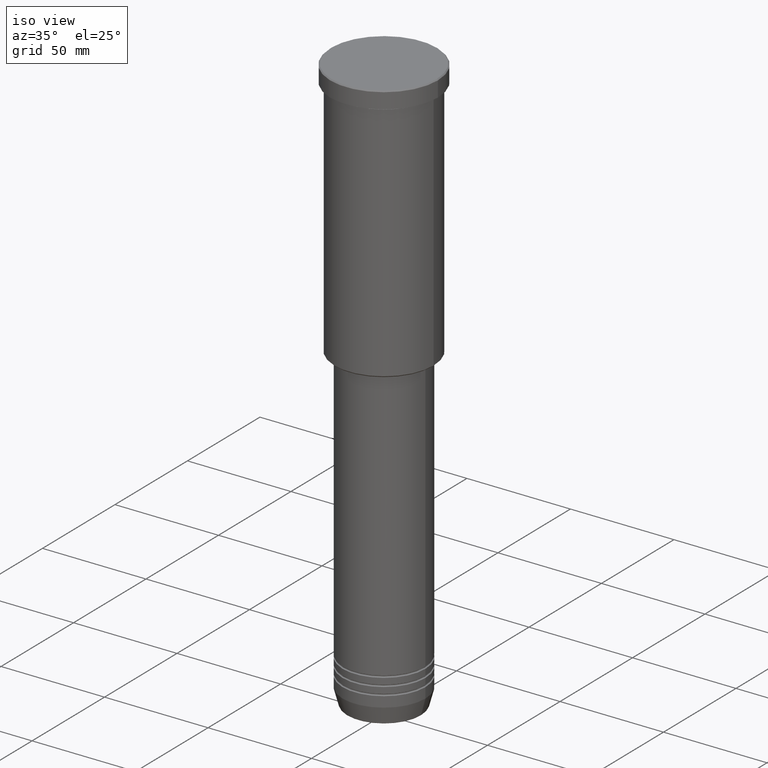
[diagram: clean part render]
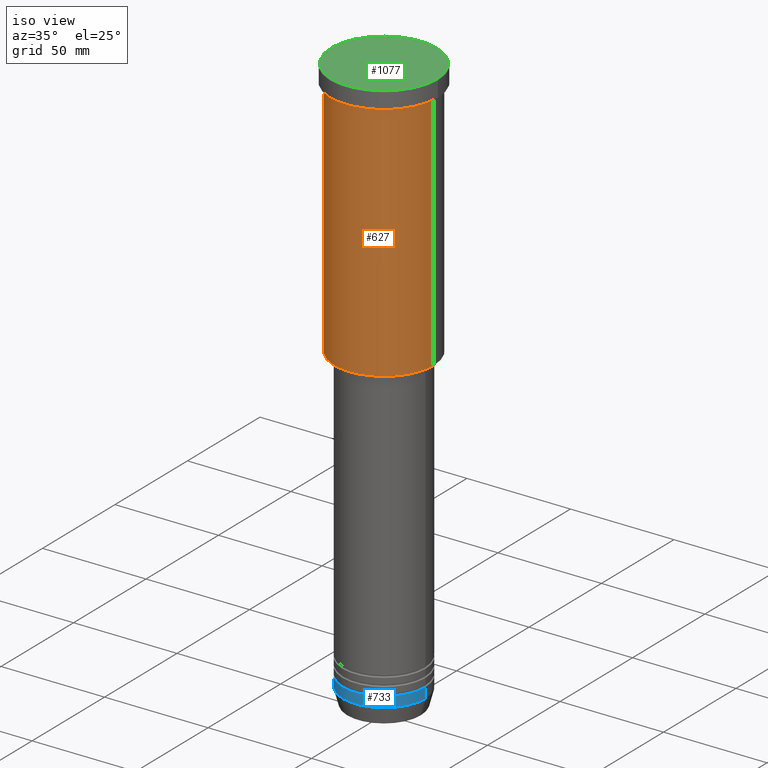
[diagram: same view with three faces highlighted in distinct colors, each labeled with its STEP entity id]
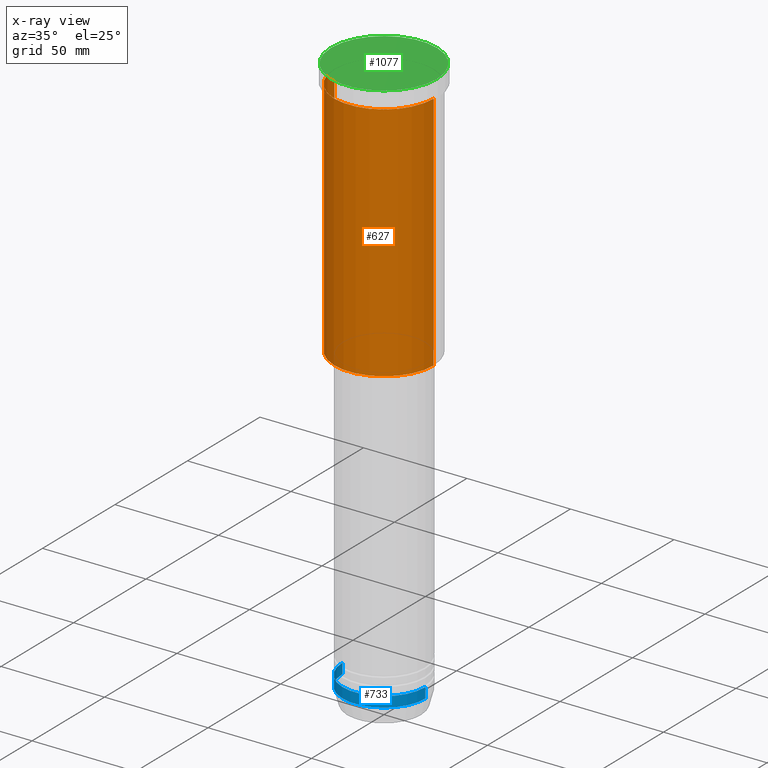
[diagram: x-ray of the same camera — body ghosted, the three highlighted faces saturated]
A machine part, iso view with three faces highlighted in distinct colors.
The next image is the same camera in x-ray (body ghosted, the three faces saturated) — at least one of them is partly hidden behind the body in this view.
Their STEP definitions:

[orange] entity #627 — the highlighted cylindrical surface (partial cylindrical patch) has radius 24 mm, axis along (-0, -0, 1).
#1 = VERTEX_POINT ( 'NONE', #669 ) ;
#7 = DIRECTION ( 'NONE',  ( -0.000000000000000000, -0.000000000000000000, 1.000000000000000000 ) ) ;
#10 = CIRCLE ( 'NONE', #1103, 24.00000000000000000 ) ;
#46 = EDGE_CURVE ( 'NONE', #872, #1034, #494, .T. ) ;
#104 = EDGE_CURVE ( 'NONE', #872, #880, #182, .T. ) ;
#139 = CARTESIAN_POINT ( 'NONE',  ( 24.00000000000000000, 0.000000000000000000, -125.4999999999999147 ) ) ;
#182 = CIRCLE ( 'NONE', #911, 24.00000000000000000 ) ;
#186 = ORIENTED_EDGE ( 'NONE', *, *, #46, .F. ) ;
#194 = CARTESIAN_POINT ( 'NONE',  ( 0.000000000000000000, 0.000000000000000000, 0.000000000000000000 ) ) ;
#221 = CARTESIAN_POINT ( 'NONE',  ( -24.00000000000000000, 2.939152317953647894E-15, -125.4999999999999147 ) ) ;
#229 = DIRECTION ( 'NONE',  ( -0.000000000000000000, -0.000000000000000000, 1.000000000000000000 ) ) ;
#271 = AXIS2_PLACEMENT_3D ( 'NONE', #194, #7, #461 ) ;
#305 = DIRECTION ( 'NONE',  ( -0.000000000000000000, -0.000000000000000000, 1.000000000000000000 ) ) ;
#324 = DIRECTION ( 'NONE',  ( -1.000000000000000000, 0.000000000000000000, 0.000000000000000000 ) ) ;
#348 = VECTOR ( 'NONE', #357, 1000.000000000000000 ) ;
#357 = DIRECTION ( 'NONE',  ( -0.000000000000000000, -0.000000000000000000, 1.000000000000000000 ) ) ;
#461 = DIRECTION ( 'NONE',  ( 1.000000000000000000, 0.000000000000000000, 0.000000000000000000 ) ) ;
#471 = VECTOR ( 'NONE', #305, 1000.000000000000000 ) ;
#494 = LINE ( 'NONE', #568, #471 ) ;
#504 = DIRECTION ( 'NONE',  ( -0.000000000000000000, -0.000000000000000000, 1.000000000000000000 ) ) ;
#568 = CARTESIAN_POINT ( 'NONE',  ( -24.00000000000000000, 2.939152317953647894E-15, 0.000000000000000000 ) ) ;
#577 = EDGE_CURVE ( 'NONE', #880, #1, #716, .T. ) ;
#627 = ADVANCED_FACE ( 'NONE', ( #1001 ), #1174, .T. ) ;
#669 = CARTESIAN_POINT ( 'NONE',  ( 24.00000000000000000, 0.000000000000000000, -8.999999999999994671 ) ) ;
#677 = CARTESIAN_POINT ( 'NONE',  ( 0.000000000000000000, 0.000000000000000000, -8.999999999999994671 ) ) ;
#695 = ORIENTED_EDGE ( 'NONE', *, *, #857, .F. ) ;
#716 = LINE ( 'NONE', #809, #348 ) ;
#754 = DIRECTION ( 'NONE',  ( 1.000000000000000000, 0.000000000000000000, 0.000000000000000000 ) ) ;
#759 = CARTESIAN_POINT ( 'NONE',  ( 0.000000000000000000, 0.000000000000000000, -125.4999999999999147 ) ) ;
#809 = CARTESIAN_POINT ( 'NONE',  ( 24.00000000000000000, 0.000000000000000000, 0.000000000000000000 ) ) ;
#810 = EDGE_LOOP ( 'NONE', ( #186, #916, #826, #695 ) ) ;
#826 = ORIENTED_EDGE ( 'NONE', *, *, #577, .T. ) ;
#857 = EDGE_CURVE ( 'NONE', #1034, #1, #10, .T. ) ;
#872 = VERTEX_POINT ( 'NONE', #221 ) ;
#880 = VERTEX_POINT ( 'NONE', #139 ) ;
#911 = AXIS2_PLACEMENT_3D ( 'NONE', #759, #504, #324 ) ;
#916 = ORIENTED_EDGE ( 'NONE', *, *, #104, .T. ) ;
#1001 = FACE_OUTER_BOUND ( 'NONE', #810, .T. ) ;
#1034 = VERTEX_POINT ( 'NONE', #1074 ) ;
#1074 = CARTESIAN_POINT ( 'NONE',  ( -24.00000000000000000, 2.939152317953647894E-15, -8.999999999999994671 ) ) ;
#1103 = AXIS2_PLACEMENT_3D ( 'NONE', #677, #229, #754 ) ;
#1174 = CYLINDRICAL_SURFACE ( 'NONE', #271, 24.00000000000000000 ) ;

[blue] entity #733 — the highlighted cylindrical surface (partial cylindrical patch) has radius 20 mm, axis along (-0, -0, 1).
#28 = CARTESIAN_POINT ( 'NONE',  ( 0.000000000000000000, 0.000000000000000000, 0.000000000000000000 ) ) ;
#70 = CARTESIAN_POINT ( 'NONE',  ( -20.00000000000000355, 2.449293598294706907E-15, -272.0000000000000000 ) ) ;
#146 = DIRECTION ( 'NONE',  ( 1.000000000000000000, 0.000000000000000000, 0.000000000000000000 ) ) ;
#178 = ORIENTED_EDGE ( 'NONE', *, *, #354, .T. ) ;
#198 = LINE ( 'NONE', #491, #895 ) ;
#212 = FACE_OUTER_BOUND ( 'NONE', #519, .T. ) ;
#233 = CIRCLE ( 'NONE', #496, 20.00000000000000355 ) ;
#267 = CARTESIAN_POINT ( 'NONE',  ( 20.00000000000000000, 0.000000000000000000, -267.0000000000000000 ) ) ;
#302 = LINE ( 'NONE', #827, #1128 ) ;
#354 = EDGE_CURVE ( 'NONE', #414, #571, #302, .T. ) ;
#362 = EDGE_CURVE ( 'NONE', #505, #1176, #198, .T. ) ;
#414 = VERTEX_POINT ( 'NONE', #744 ) ;
#437 = DIRECTION ( 'NONE',  ( -0.000000000000000000, -0.000000000000000000, 1.000000000000000000 ) ) ;
#454 = CARTESIAN_POINT ( 'NONE',  ( 0.000000000000000000, 0.000000000000000000, -272.0000000000000000 ) ) ;
#480 = DIRECTION ( 'NONE',  ( 1.000000000000000000, 0.000000000000000000, 0.000000000000000000 ) ) ;
#491 = CARTESIAN_POINT ( 'NONE',  ( -20.00000000000000355, 2.449293598294706907E-15, 0.000000000000000000 ) ) ;
#496 = AXIS2_PLACEMENT_3D ( 'NONE', #454, #745, #1114 ) ;
#505 = VERTEX_POINT ( 'NONE', #70 ) ;
#518 = AXIS2_PLACEMENT_3D ( 'NONE', #28, #585, #480 ) ;
#519 = EDGE_LOOP ( 'NONE', ( #706, #795, #178, #1101 ) ) ;
#536 = AXIS2_PLACEMENT_3D ( 'NONE', #1062, #437, #146 ) ;
#567 = CYLINDRICAL_SURFACE ( 'NONE', #518, 20.00000000000000355 ) ;
#571 = VERTEX_POINT ( 'NONE', #267 ) ;
#585 = DIRECTION ( 'NONE',  ( -0.000000000000000000, -0.000000000000000000, 1.000000000000000000 ) ) ;
#615 = EDGE_CURVE ( 'NONE', #505, #414, #233, .T. ) ;
#706 = ORIENTED_EDGE ( 'NONE', *, *, #362, .F. ) ;
#733 = ADVANCED_FACE ( 'NONE', ( #212 ), #567, .T. ) ;
#737 = DIRECTION ( 'NONE',  ( -0.000000000000000000, -0.000000000000000000, 1.000000000000000000 ) ) ;
#744 = CARTESIAN_POINT ( 'NONE',  ( 20.00000000000000355, 0.000000000000000000, -272.0000000000000000 ) ) ;
#745 = DIRECTION ( 'NONE',  ( -0.000000000000000000, -0.000000000000000000, 1.000000000000000000 ) ) ;
#795 = ORIENTED_EDGE ( 'NONE', *, *, #615, .T. ) ;
#819 = CARTESIAN_POINT ( 'NONE',  ( -20.00000000000000000, 2.449293598294706513E-15, -267.0000000000000000 ) ) ;
#827 = CARTESIAN_POINT ( 'NONE',  ( 20.00000000000000355, 0.000000000000000000, 0.000000000000000000 ) ) ;
#895 = VECTOR ( 'NONE', #737, 1000.000000000000000 ) ;
#1019 = DIRECTION ( 'NONE',  ( -0.000000000000000000, -0.000000000000000000, 1.000000000000000000 ) ) ;
#1035 = EDGE_CURVE ( 'NONE', #1176, #571, #1089, .T. ) ;
#1062 = CARTESIAN_POINT ( 'NONE',  ( 0.000000000000000000, 0.000000000000000000, -267.0000000000000000 ) ) ;
#1089 = CIRCLE ( 'NONE', #536, 20.00000000000000000 ) ;
#1101 = ORIENTED_EDGE ( 'NONE', *, *, #1035, .F. ) ;
#1114 = DIRECTION ( 'NONE',  ( 1.000000000000000000, 0.000000000000000000, 0.000000000000000000 ) ) ;
#1128 = VECTOR ( 'NONE', #1019, 1000.000000000000000 ) ;
#1176 = VERTEX_POINT ( 'NONE', #819 ) ;

[green] entity #1077 — the highlighted planar face has unit normal (0, -0, 1).
#71 = AXIS2_PLACEMENT_3D ( 'NONE', #507, #959, #343 ) ;
#87 = CIRCLE ( 'NONE', #71, 25.49999999999994316 ) ;
#140 = DIRECTION ( 'NONE',  ( 0.000000000000000000, -0.000000000000000000, 1.000000000000000000 ) ) ;
#157 = DIRECTION ( 'NONE',  ( 1.000000000000000000, 0.000000000000000000, 0.000000000000000000 ) ) ;
#160 = ORIENTED_EDGE ( 'NONE', *, *, #985, .T. ) ;
#192 = CARTESIAN_POINT ( 'NONE',  ( 25.49999999999994316, 3.153465507804430854E-15, 0.000000000000000000 ) ) ;
#343 = DIRECTION ( 'NONE',  ( 1.000000000000000000, 0.000000000000000000, 0.000000000000000000 ) ) ;
#355 = DIRECTION ( 'NONE',  ( 1.000000000000000000, 0.000000000000000000, 0.000000000000000000 ) ) ;
#394 = VERTEX_POINT ( 'NONE', #192 ) ;
#406 = AXIS2_PLACEMENT_3D ( 'NONE', #448, #1164, #355 ) ;
#424 = CARTESIAN_POINT ( 'NONE',  ( 0.000000000000000000, 0.000000000000000000, 0.000000000000000000 ) ) ;
#448 = CARTESIAN_POINT ( 'NONE',  ( 0.000000000000000000, 0.000000000000000000, 0.000000000000000000 ) ) ;
#507 = CARTESIAN_POINT ( 'NONE',  ( 0.000000000000000000, 0.000000000000000000, 0.000000000000000000 ) ) ;
#574 = EDGE_CURVE ( 'NONE', #951, #394, #912, .T. ) ;
#609 = PLANE ( 'NONE',  #763 ) ;
#763 = AXIS2_PLACEMENT_3D ( 'NONE', #424, #140, #157 ) ;
#823 = ORIENTED_EDGE ( 'NONE', *, *, #574, .T. ) ;
#912 = CIRCLE ( 'NONE', #406, 25.49999999999994316 ) ;
#951 = VERTEX_POINT ( 'NONE', #969 ) ;
#959 = DIRECTION ( 'NONE',  ( -0.000000000000000000, -0.000000000000000000, 1.000000000000000000 ) ) ;
#963 = FACE_OUTER_BOUND ( 'NONE', #1095, .T. ) ;
#969 = CARTESIAN_POINT ( 'NONE',  ( -25.49999999999994316, 0.000000000000000000, 0.000000000000000000 ) ) ;
#985 = EDGE_CURVE ( 'NONE', #394, #951, #87, .T. ) ;
#1077 = ADVANCED_FACE ( 'NONE', ( #963 ), #609, .T. ) ;
#1095 = EDGE_LOOP ( 'NONE', ( #823, #160 ) ) ;
#1164 = DIRECTION ( 'NONE',  ( -0.000000000000000000, -0.000000000000000000, 1.000000000000000000 ) ) ;